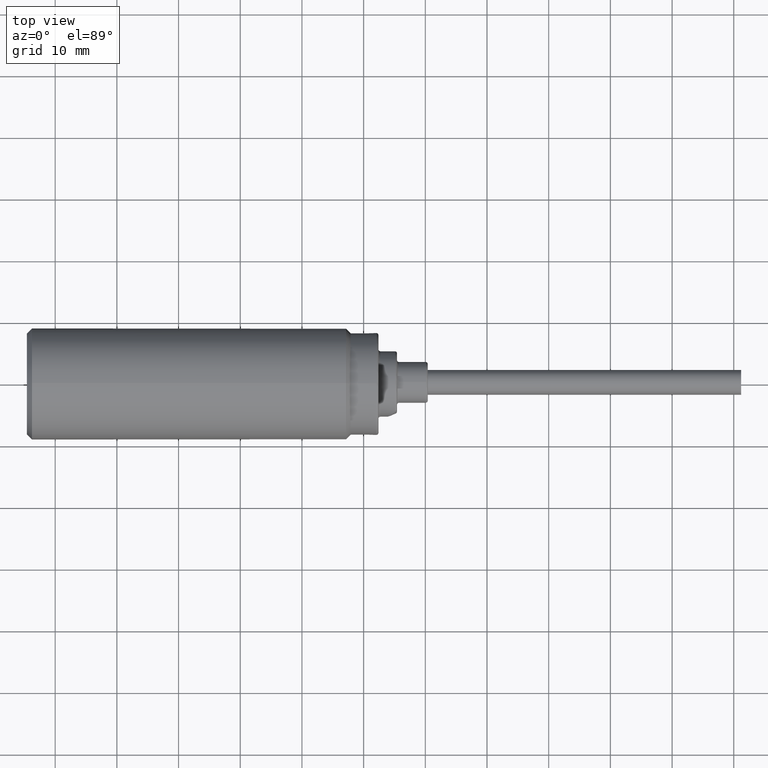
[diagram: clean part render]
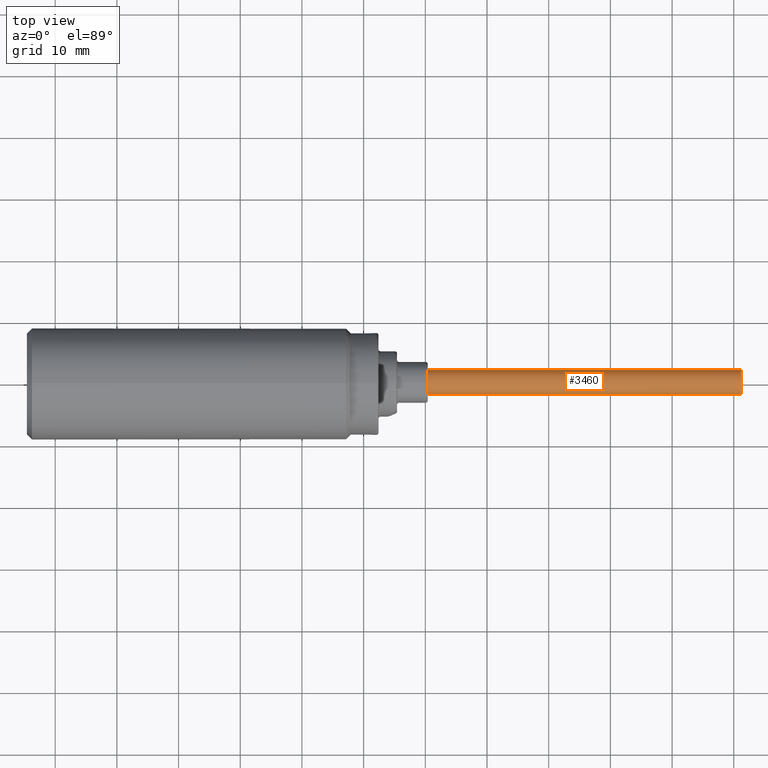
[diagram: same view with one face highlighted and labeled with its STEP entity id]
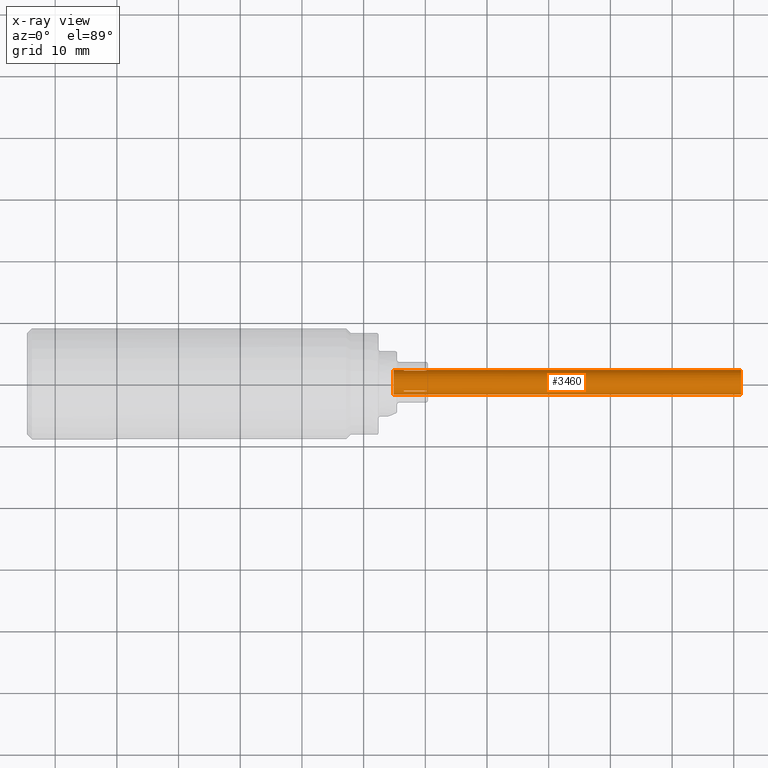
[diagram: x-ray of the same camera — body ghosted, the highlighted face saturated]
A machine part, top view. The second image highlights one B-rep face of the part: STEP entity #3460.
The next image is the same camera in x-ray: the body ghosted, the highlighted face saturated — about 0% of this face is hidden behind the body in this view.
In plain terms, the highlighted cylindrical surface (edge-blend (fillet) strip) has radius 2 mm, axis along (-1, -0, 0).
Its self-contained STEP definition (entity closure, byte-faithful):
#25 = CARTESIAN_POINT ( 'NONE',  ( 2.225172370934001000, -0.04921495565759146500, 0.09019896057596830900 ) ) ;
#38 = DIRECTION ( 'NONE',  ( -1.000000000000000000, -3.834644641178698600E-017, 9.894819485414009300E-018 ) ) ;
#40 = VERTEX_POINT ( 'NONE', #1556 ) ;
#61 = EDGE_CURVE ( 'NONE', #595, #2560, #1368, .T. ) ;
#66 = DIRECTION ( 'NONE',  ( 1.000000000000000000, 3.834644641178698600E-017, -9.894819485414009300E-018 ) ) ;
#81 = VECTOR ( 'NONE', #2131, 39.37007874015748100 ) ;
#102 = LINE ( 'NONE', #2681, #2837 ) ;
#107 = CARTESIAN_POINT ( 'NONE',  ( 2.368593617425698700, 0.08612389923618490900, 0.05784495500040186900 ) ) ;
#116 = DIRECTION ( 'NONE',  ( -1.000000000000000000, 0.0000000000000000000, 0.0000000000000000000 ) ) ;
#213 = CARTESIAN_POINT ( 'NONE',  ( 4.377952755905519100, 0.009842519685036431300, 0.03811991482487694900 ) ) ;
#231 = EDGE_LOOP ( 'NONE', ( #3029, #1291, #2333, #1402 ) ) ;
#276 = VERTEX_POINT ( 'NONE', #3430 ) ;
#303 = ORIENTED_EDGE ( 'NONE', *, *, #3409, .F. ) ;
#338 = VERTEX_POINT ( 'NONE', #25 ) ;
#390 = DIRECTION ( 'NONE',  ( 0.0000000000000000000, -1.000000000000000000, 0.0000000000000000000 ) ) ;
#405 = CARTESIAN_POINT ( 'NONE',  ( 81.03543307086614800, -0.06889763779527559300, 0.03811991482487619300 ) ) ;
#478 = CARTESIAN_POINT ( 'NONE',  ( 2.368332626152834600, -0.04921495565618411900, 0.09019896057598114600 ) ) ;
#521 = DIRECTION ( 'NONE',  ( 1.000000000000000000, 3.834644641178698600E-017, -9.894819485414009300E-018 ) ) ;
#560 = AXIS2_PLACEMENT_3D ( 'NONE', #1787, #1800, #390 ) ;
#571 = LINE ( 'NONE', #2761, #3256 ) ;
#595 = VERTEX_POINT ( 'NONE', #1471 ) ;
#610 = DIRECTION ( 'NONE',  ( -1.000000000000000000, -3.834644641178698600E-017, 9.894819485414009300E-018 ) ) ;
#755 = DIRECTION ( 'NONE',  ( 0.0000000000000000000, -1.000000000000000000, 0.0000000000000000000 ) ) ;
#756 = EDGE_CURVE ( 'NONE', #2966, #3461, #2685, .T. ) ;
#762 = CARTESIAN_POINT ( 'NONE',  ( 81.03543307086614800, 0.08818636344054134300, 0.04601006980676955500 ) ) ;
#790 = CARTESIAN_POINT ( 'NONE',  ( 81.03543307086614800, 0.08673047021866010800, 0.05509800254888944100 ) ) ;
#814 = ORIENTED_EDGE ( 'NONE', *, *, #1067, .T. ) ;
#821 = LINE ( 'NONE', #762, #81 ) ;
#822 = DIRECTION ( 'NONE',  ( 0.0000000000000000000, 0.9682458365512670600, -0.2500000000022742900 ) ) ;
#843 = VERTEX_POINT ( 'NONE', #2172 ) ;
#856 = B_SPLINE_CURVE_WITH_KNOTS ( 'NONE', 3,
 ( #1194, #107, #2049, #1477 ),
 .UNSPECIFIED., .F., .F.,
 ( 4, 4 ),
 ( 0.0000000000000000000, 1.000000000000000000 ),
 .UNSPECIFIED. ) ;
#972 = EDGE_CURVE ( 'NONE', #2236, #276, #1257, .T. ) ;
#984 = FACE_BOUND ( 'NONE', #2785, .T. ) ;
#1030 = DIRECTION ( 'NONE',  ( -1.000000000000000000, -3.834644641178698600E-017, 9.894819485414009300E-018 ) ) ;
#1052 = DIRECTION ( 'NONE',  ( 0.0000000000000000000, -1.000000000000000000, 0.0000000000000000000 ) ) ;
#1067 = EDGE_CURVE ( 'NONE', #3461, #843, #856, .T. ) ;
#1072 = CARTESIAN_POINT ( 'NONE',  ( 2.225172370935815500, 0.08673047022029985200, 0.05509800254796271000 ) ) ;
#1097 = ORIENTED_EDGE ( 'NONE', *, *, #2977, .T. ) ;
#1150 = AXIS2_PLACEMENT_3D ( 'NONE', #213, #2380, #1052 ) ;
#1194 = CARTESIAN_POINT ( 'NONE',  ( 2.368332626152844300, 0.08673047021865565300, 0.05509800254889068300 ) ) ;
#1200 = EDGE_CURVE ( 'NONE', #40, #2197, #2324, .T. ) ;
#1240 = CARTESIAN_POINT ( 'NONE',  ( 2.225172370933383300, 0.009842519685039411600, 0.03811991482487613700 ) ) ;
#1257 = LINE ( 'NONE', #2479, #2140 ) ;
#1286 = DIRECTION ( 'NONE',  ( 1.000000000000000000, 3.834644641178698600E-017, -9.894819485414009300E-018 ) ) ;
#1291 = ORIENTED_EDGE ( 'NONE', *, *, #1306, .T. ) ;
#1297 = CARTESIAN_POINT ( 'NONE',  ( 2.225172370934001000, 0.08447303398164945900, 0.06322566587942248000 ) ) ;
#1306 = EDGE_CURVE ( 'NONE', #3164, #40, #102, .T. ) ;
#1345 = VECTOR ( 'NONE', #610, 39.37007874015748100 ) ;
#1360 = VECTOR ( 'NONE', #1030, 39.37007874015748100 ) ;
#1368 = CIRCLE ( 'NONE', #2189, 0.07874015748031496000 ) ;
#1370 = CIRCLE ( 'NONE', #2495, 0.07874015748031496000 ) ;
#1371 = EDGE_CURVE ( 'NONE', #1808, #2966, #2212, .T. ) ;
#1402 = ORIENTED_EDGE ( 'NONE', *, *, #2460, .T. ) ;
#1451 = ORIENTED_EDGE ( 'NONE', *, *, #756, .T. ) ;
#1471 = CARTESIAN_POINT ( 'NONE',  ( 2.211602206097127000, 0.08858267716535130100, 0.03811991482487697000 ) ) ;
#1477 = CARTESIAN_POINT ( 'NONE',  ( 2.368332626152848300, 0.08447303398095674900, 0.06322566587819700200 ) ) ;
#1478 = EDGE_CURVE ( 'NONE', #843, #1808, #1503, .T. ) ;
#1503 = LINE ( 'NONE', #2951, #2176 ) ;
#1525 = LINE ( 'NONE', #2655, #1360 ) ;
#1556 = CARTESIAN_POINT ( 'NONE',  ( 2.368332626152835500, -0.04330491085845082600, 0.09621778936990510500 ) ) ;
#1564 = CARTESIAN_POINT ( 'NONE',  ( 81.03543307086614800, 0.009842519685039369900, 0.03811991482487619300 ) ) ;
#1582 = DIRECTION ( 'NONE',  ( 0.0000000000000000000, -1.000000000000000000, 0.0000000000000000000 ) ) ;
#1590 = DIRECTION ( 'NONE',  ( -1.000000000000000000, -3.834644641178698600E-017, 9.894819485414009300E-018 ) ) ;
#1597 = DIRECTION ( 'NONE',  ( 1.000000000000000000, 3.834644641178698600E-017, -9.894819485414009300E-018 ) ) ;
#1633 = CARTESIAN_POINT ( 'NONE',  ( 2.225172370933383300, 0.009842519685039411600, 0.03811991482487613700 ) ) ;
#1643 = ORIENTED_EDGE ( 'NONE', *, *, #1691, .T. ) ;
#1691 = EDGE_CURVE ( 'NONE', #2717, #595, #571, .T. ) ;
#1704 = CIRCLE ( 'NONE', #1150, 0.07874015748031496000 ) ;
#1745 = AXIS2_PLACEMENT_3D ( 'NONE', #1564, #1590, #755 ) ;
#1755 = AXIS2_PLACEMENT_3D ( 'NONE', #1633, #2436, #822 ) ;
#1787 = CARTESIAN_POINT ( 'NONE',  ( 2.160067466004219000, 0.009842519685036346300, 0.03811991482487697000 ) ) ;
#1800 = DIRECTION ( 'NONE',  ( 1.000000000000000000, 3.834644641178698600E-017, -9.894819485414009300E-018 ) ) ;
#1808 = VERTEX_POINT ( 'NONE', #1297 ) ;
#1813 = VERTEX_POINT ( 'NONE', #2640 ) ;
#1829 = DIRECTION ( 'NONE',  ( 0.0000000000000000000, -1.000000000000000000, -1.778091562876227300E-014 ) ) ;
#1898 = EDGE_CURVE ( 'NONE', #3355, #3247, #2137, .T. ) ;
#1926 = CYLINDRICAL_SURFACE ( 'NONE', #1745, 0.07874015748031496000 ) ;
#1959 = FACE_BOUND ( 'NONE', #231, .T. ) ;
#2002 = CIRCLE ( 'NONE', #3314, 0.07874015748312041000 ) ;
#2035 = DIRECTION ( 'NONE',  ( 0.0000000000000000000, 0.9682458365512670600, -0.2500000000022742900 ) ) ;
#2049 = CARTESIAN_POINT ( 'NONE',  ( 2.368593617425698700, 0.08536997952215398500, 0.06055936416538084500 ) ) ;
#2109 = CARTESIAN_POINT ( 'NONE',  ( 2.368332626152835500, -0.04330491085845082600, 0.09621778936990510500 ) ) ;
#2131 = DIRECTION ( 'NONE',  ( -1.000000000000000000, -3.834644641178698600E-017, 9.894819485414009300E-018 ) ) ;
#2137 = LINE ( 'NONE', #405, #1345 ) ;
#2140 = VECTOR ( 'NONE', #66, 39.37007874015748100 ) ;
#2172 = CARTESIAN_POINT ( 'NONE',  ( 2.368332626152848300, 0.08447303398095674900, 0.06322566587819700200 ) ) ;
#2176 = VECTOR ( 'NONE', #2980, 39.37007874015748100 ) ;
#2189 = AXIS2_PLACEMENT_3D ( 'NONE', #3172, #1597, #1582 ) ;
#2196 = FACE_OUTER_BOUND ( 'NONE', #3171, .T. ) ;
#2197 = VERTEX_POINT ( 'NONE', #2714 ) ;
#2212 = CIRCLE ( 'NONE', #1755, 0.07874015748312041000 ) ;
#2231 = CIRCLE ( 'NONE', #560, 0.07874015748031496000 ) ;
#2236 = VERTEX_POINT ( 'NONE', #3261 ) ;
#2290 = ORIENTED_EDGE ( 'NONE', *, *, #2331, .T. ) ;
#2312 = CARTESIAN_POINT ( 'NONE',  ( 2.211602206097109200, 0.009842519685036348100, 0.03811991482487697000 ) ) ;
#2324 = B_SPLINE_CURVE_WITH_KNOTS ( 'NONE', 3,
 ( #2109, #3389, #2897, #478 ),
 .UNSPECIFIED., .F., .F.,
 ( 4, 4 ),
 ( 0.0000000000000000000, 1.000000000000000000 ),
 .UNSPECIFIED. ) ;
#2331 = EDGE_CURVE ( 'NONE', #1813, #2236, #2231, .T. ) ;
#2333 = ORIENTED_EDGE ( 'NONE', *, *, #1200, .T. ) ;
#2336 = DIRECTION ( 'NONE',  ( 1.000000000000000000, 3.834644641178698600E-017, -9.894819485414009300E-018 ) ) ;
#2380 = DIRECTION ( 'NONE',  ( 1.000000000000000000, 2.930004887164251900E-015, 0.0000000000000000000 ) ) ;
#2415 = ORIENTED_EDGE ( 'NONE', *, *, #2908, .T. ) ;
#2436 = DIRECTION ( 'NONE',  ( -1.000000000000000000, 0.0000000000000000000, 0.0000000000000000000 ) ) ;
#2460 = EDGE_CURVE ( 'NONE', #2197, #338, #1525, .T. ) ;
#2479 = CARTESIAN_POINT ( 'NONE',  ( 81.03543307086614800, -0.06850132407046231900, 0.04601006980677228900 ) ) ;
#2495 = AXIS2_PLACEMENT_3D ( 'NONE', #2312, #2336, #1829 ) ;
#2560 = VERTEX_POINT ( 'NONE', #2921 ) ;
#2580 = ORIENTED_EDGE ( 'NONE', *, *, #61, .T. ) ;
#2640 = CARTESIAN_POINT ( 'NONE',  ( 2.160067466004218100, 0.08818636344053817900, 0.04601006980677168500 ) ) ;
#2655 = CARTESIAN_POINT ( 'NONE',  ( 81.03543307086614800, -0.04921495565618273800, 0.09019896057598172900 ) ) ;
#2677 = ORIENTED_EDGE ( 'NONE', *, *, #972, .T. ) ;
#2681 = CARTESIAN_POINT ( 'NONE',  ( 81.03543307086614800, -0.04330491085844728700, 0.09621778936990634000 ) ) ;
#2685 = LINE ( 'NONE', #790, #3093 ) ;
#2704 = CARTESIAN_POINT ( 'NONE',  ( 2.225172370935810700, -0.04330491085846659800, 0.09621778937179152600 ) ) ;
#2714 = CARTESIAN_POINT ( 'NONE',  ( 2.368332626152834600, -0.04921495565618411900, 0.09019896057598114600 ) ) ;
#2717 = VERTEX_POINT ( 'NONE', #3263 ) ;
#2725 = CARTESIAN_POINT ( 'NONE',  ( 2.211602206097109200, -0.06889763779527861800, 0.03811991482487696300 ) ) ;
#2745 = ORIENTED_EDGE ( 'NONE', *, *, #1371, .T. ) ;
#2761 = CARTESIAN_POINT ( 'NONE',  ( 81.03543307086614800, 0.08858267716535434000, 0.03811991482487620000 ) ) ;
#2785 = EDGE_LOOP ( 'NONE', ( #2745, #1451, #814, #2964 ) ) ;
#2837 = VECTOR ( 'NONE', #521, 39.37007874015748100 ) ;
#2874 = ORIENTED_EDGE ( 'NONE', *, *, #1898, .F. ) ;
#2897 = CARTESIAN_POINT ( 'NONE',  ( 2.368593617425698700, -0.04735434340933199200, 0.09230888905687846500 ) ) ;
#2908 = EDGE_CURVE ( 'NONE', #276, #3247, #1370, .T. ) ;
#2921 = CARTESIAN_POINT ( 'NONE',  ( 2.211602206097123400, 0.08818636344053817900, 0.04601006980677168500 ) ) ;
#2951 = CARTESIAN_POINT ( 'NONE',  ( 81.03543307086614800, 0.08447303398095856700, 0.06322566587819863900 ) ) ;
#2964 = ORIENTED_EDGE ( 'NONE', *, *, #1478, .T. ) ;
#2966 = VERTEX_POINT ( 'NONE', #1072 ) ;
#2977 = EDGE_CURVE ( 'NONE', #2560, #1813, #821, .T. ) ;
#2980 = DIRECTION ( 'NONE',  ( -1.000000000000000000, -3.834644641178698600E-017, 9.894819485414009300E-018 ) ) ;
#3029 = ORIENTED_EDGE ( 'NONE', *, *, #3034, .T. ) ;
#3034 = EDGE_CURVE ( 'NONE', #338, #3164, #2002, .T. ) ;
#3093 = VECTOR ( 'NONE', #1286, 39.37007874015748100 ) ;
#3164 = VERTEX_POINT ( 'NONE', #2704 ) ;
#3171 = EDGE_LOOP ( 'NONE', ( #303, #1643, #2580, #1097, #2290, #2677, #2415, #2874 ) ) ;
#3172 = CARTESIAN_POINT ( 'NONE',  ( 2.211602206097127000, 0.009842519685036348100, 0.03811991482487697000 ) ) ;
#3247 = VERTEX_POINT ( 'NONE', #2725 ) ;
#3256 = VECTOR ( 'NONE', #38, 39.37007874015748100 ) ;
#3261 = CARTESIAN_POINT ( 'NONE',  ( 2.160067466004219400, -0.06850132407046533000, 0.04601006980677308600 ) ) ;
#3263 = CARTESIAN_POINT ( 'NONE',  ( 4.377952755905519100, 0.08858267716535138400, 0.03811991482487697000 ) ) ;
#3314 = AXIS2_PLACEMENT_3D ( 'NONE', #1240, #116, #2035 ) ;
#3343 = CARTESIAN_POINT ( 'NONE',  ( 4.377952755905519100, -0.06889763779527853500, 0.03811991482487694900 ) ) ;
#3355 = VERTEX_POINT ( 'NONE', #3343 ) ;
#3389 = CARTESIAN_POINT ( 'NONE',  ( 2.368593617425698700, -0.04538055597321246500, 0.09431900726413051900 ) ) ;
#3409 = EDGE_CURVE ( 'NONE', #2717, #3355, #1704, .T. ) ;
#3417 = CARTESIAN_POINT ( 'NONE',  ( 2.368332626152844300, 0.08673047021865565300, 0.05509800254889068300 ) ) ;
#3430 = CARTESIAN_POINT ( 'NONE',  ( 2.211602206097113200, -0.06850132407046533000, 0.04601006980677308600 ) ) ;
#3460 = ADVANCED_FACE ( 'NONE', ( #984, #1959, #2196 ), #1926, .T. ) ;
#3461 = VERTEX_POINT ( 'NONE', #3417 ) ;